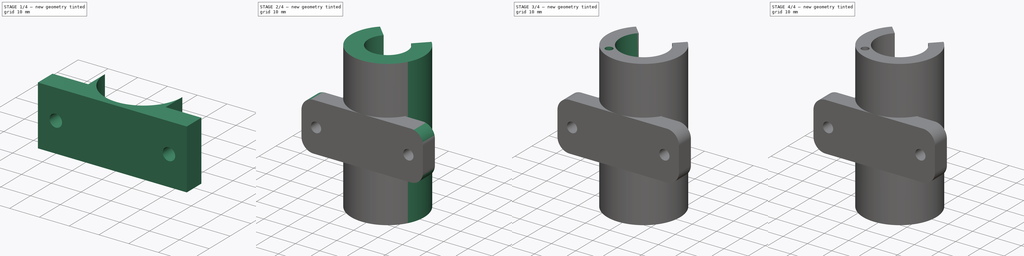
[diagram: build sequence overview — one tinted view per stage of 4, left to right]
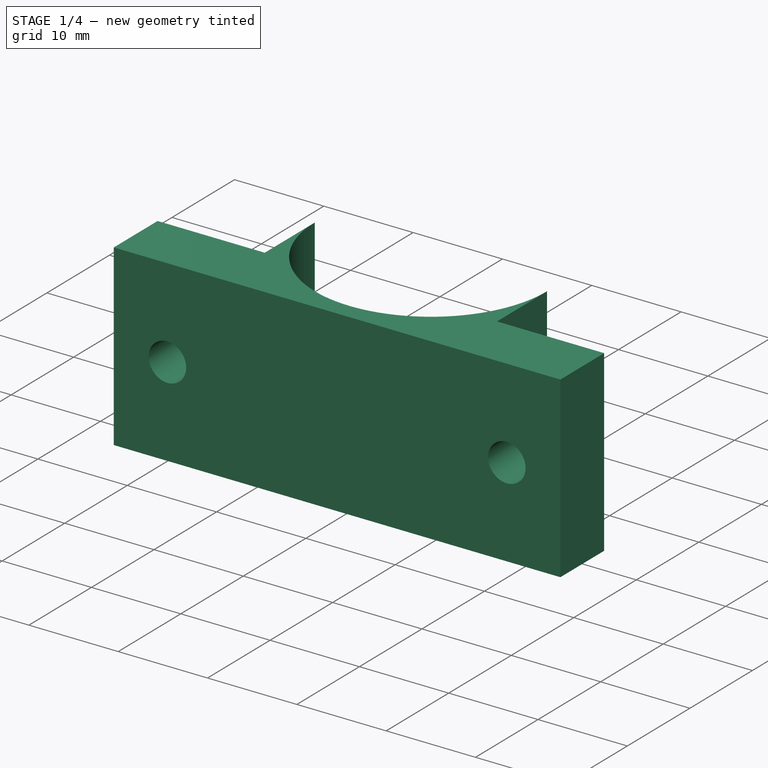
[diagram: stage 1 of 4 — iso view after this stage's code; geometry added in this stage tinted green]
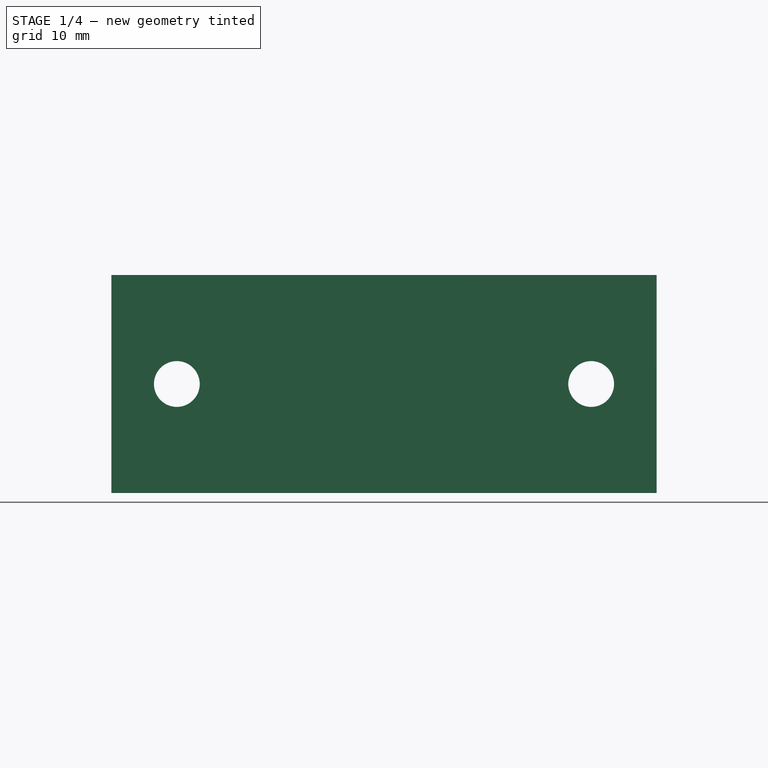
[diagram: stage 1 of 4 — front view after this stage's code; geometry added in this stage tinted green]
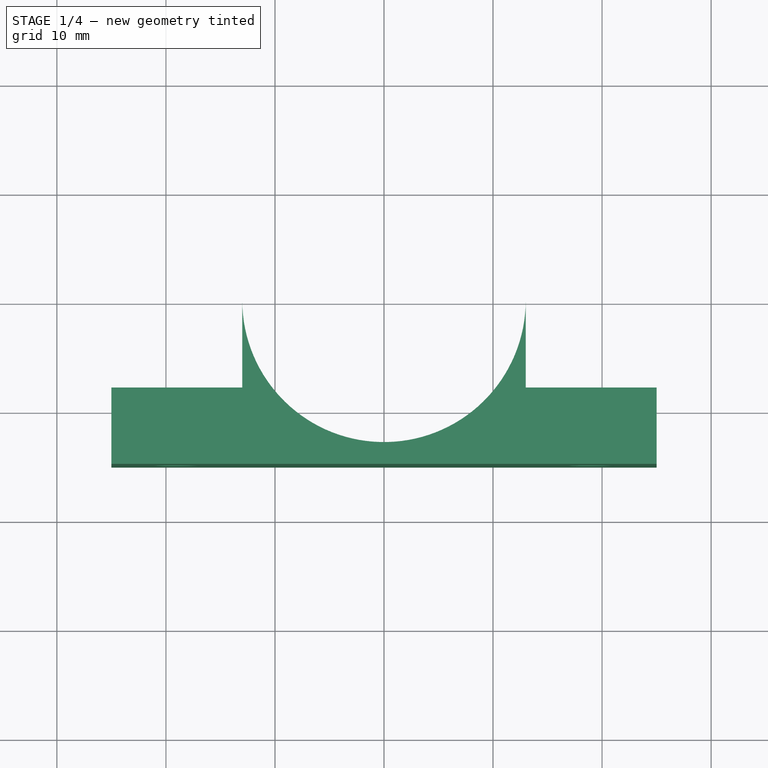
[diagram: stage 1 of 4 — top view after this stage's code; geometry added in this stage tinted green]
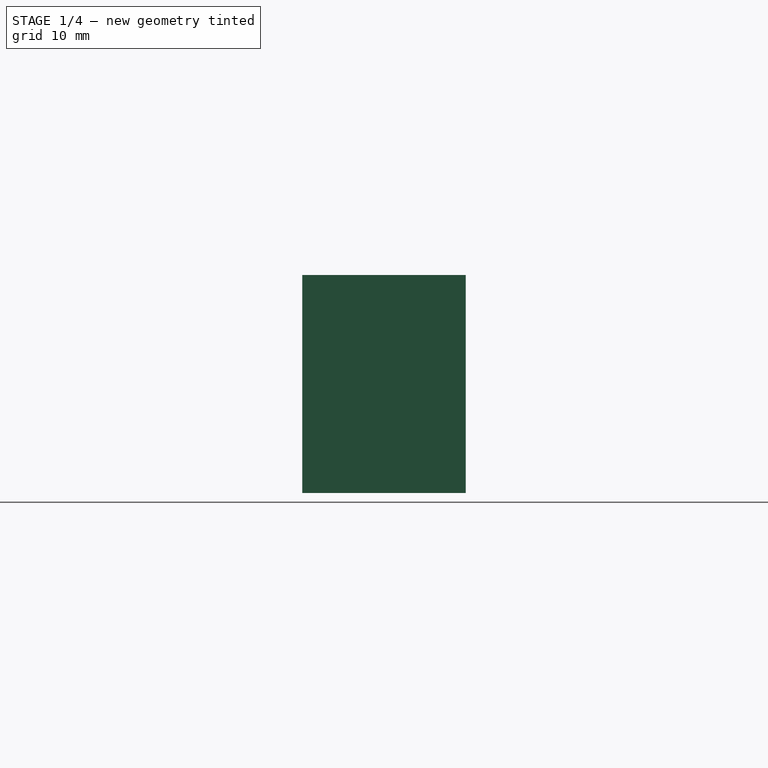
[diagram: stage 1 of 4 — right view after this stage's code; geometry added in this stage tinted green]
FCSTD DOCUMENT  (FreeCAD 0.16R6704 (Git))
Label: z-carriage-lmuu
License: All rights reserved
LicenseURL: http://de.wikipedia.org/wiki/Alle_Rechte_vorbehalten
objects: Sketcher::SketchObject×8, PartDesign::Pocket×6, PartDesign::Pad×2, PartDesign::Fillet×1, Part::MultiFuse×1
note: 26 computed .brp shape members not serialized (recipe doc carries the construction recipe); baked Part::Feature solids carry a one-line shape summary decoded from their .brp

FEATURE [Sketcher::SketchObject] Sketch003
  sketch-geometry (8):
    g0: ArcOfCircle CenterX=0 CenterY=0 CenterZ=0 NormalX=0 NormalY=0 NormalZ=1 Radius=13 StartAngle=3.14159 EndAngle=6.28319
    g1: LineSegment StartX=13 StartY=0 StartZ=0 EndX=13 EndY=-8 EndZ=0
    g2: LineSegment StartX=-13 StartY=0 StartZ=0 EndX=-13 EndY=-8 EndZ=0
    g3: LineSegment StartX=-13 StartY=-8 StartZ=0 EndX=-25 EndY=-8 EndZ=0
    g4: LineSegment StartX=13 StartY=-8 StartZ=0 EndX=25 EndY=-8 EndZ=0
    g5: LineSegment StartX=-25 StartY=-8 StartZ=0 EndX=-25 EndY=-15 EndZ=0
    g6: LineSegment StartX=-25 StartY=-15 StartZ=0 EndX=25 EndY=-15 EndZ=0
    g7: LineSegment StartX=25 StartY=-15 StartZ=0 EndX=25 EndY=-8 EndZ=0
  constraints (23):
    c: Coincident(g0,g-1)
    c: Symmetric(g0,g0,g-2)
    c: Coincident(g1,g0)
    c: Vertical(g1)
    c: Coincident(g2,g0)
    c: Coincident(g3,g2)
    c: Horizontal(g3)
    c: Coincident(g4,g1)
    c: Horizontal(g4)
    c: Coincident(g5,g3)
    c: Vertical(g5)
    c: Coincident(g6,g5)
    c: Horizontal(g6)
    c: Coincident(g7,g6)
    c: Coincident(g7,g4)
    c: Vertical(g7)
    c: Symmetric(g2,g1,g-2)
    c: Equal(g3,g4)
    c: DistanceX(g6,g6) = 50
    c: DistanceY(g7,g7) = 7
    c: DistanceY(g6,g-1) = 15
    c: PointOnObject(g0,g-1)
    c: Radius(g0) = 13
FEATURE [PartDesign::Pad] Pad001
  Length = 20
  Length2 = 100
  Midplane = true
  Sketch = -> Sketch003
  Type = 0
FEATURE [Sketcher::SketchObject] Sketch008
  ExternalGeometry = -> [Pad001]
  Placement = pos=(0,-15,0) rot=(1,0,0;1.5708rad)
  Support = -> Pad001 [Face5]
  sketch-geometry (2):
    g0: Circle CenterX=-19 CenterY=0 CenterZ=0 NormalX=0 NormalY=0 NormalZ=1 Radius=2.1
    g1: Circle CenterX=19 CenterY=0 CenterZ=0 NormalX=0 NormalY=0 NormalZ=1 Radius=2.1
  constraints (6):
    c: PointOnObject(g0,g-1)
    c: PointOnObject(g1,g-1)
    c: Equal(g0,g1)
    c: Radius(g0) = 2.1
    c: DistanceX(g1,g-4) = 6
    c: DistanceX(g-3,g0) = 6
FEATURE [PartDesign::Pocket] Pocket004
  Length = 7
  Sketch = -> Sketch008
  Type = 0
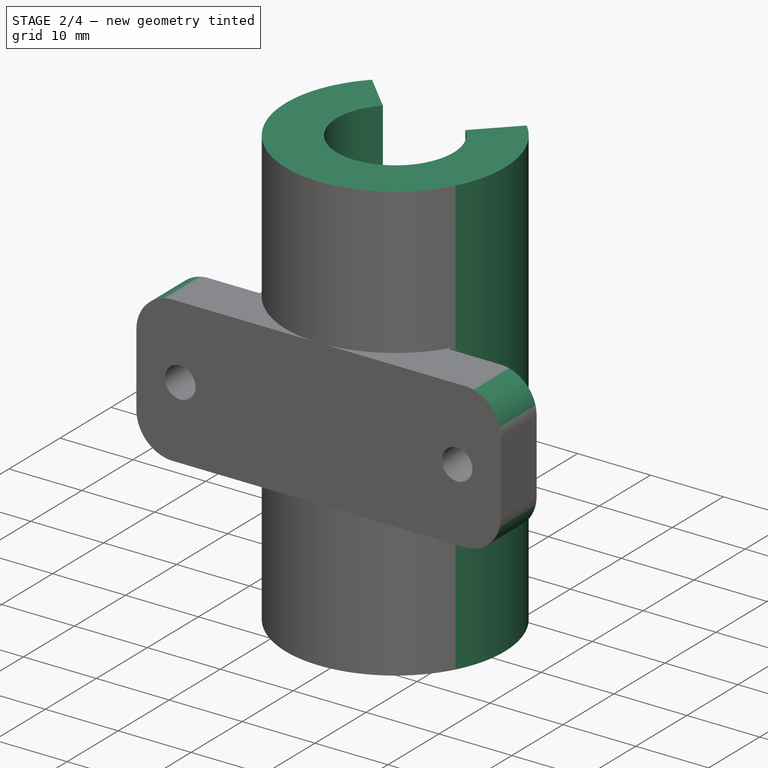
[diagram: stage 2 of 4 — iso view after this stage's code; geometry added in this stage tinted green]
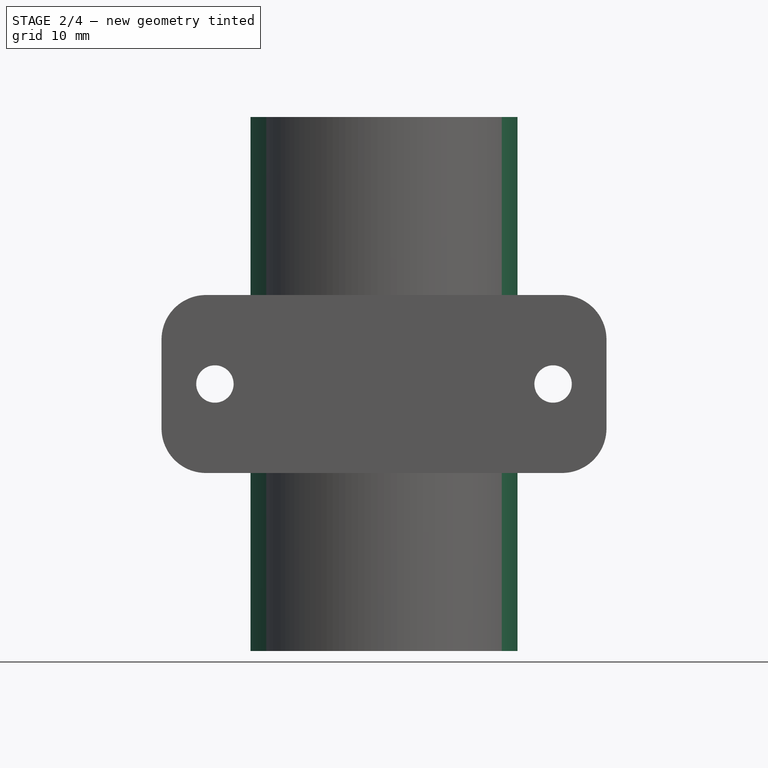
[diagram: stage 2 of 4 — front view after this stage's code; geometry added in this stage tinted green]
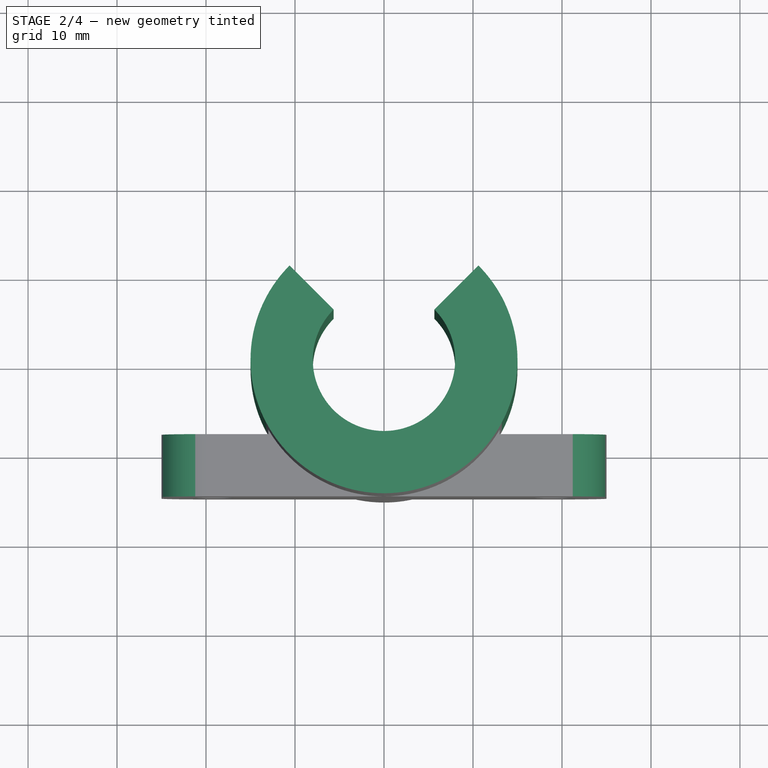
[diagram: stage 2 of 4 — top view after this stage's code; geometry added in this stage tinted green]
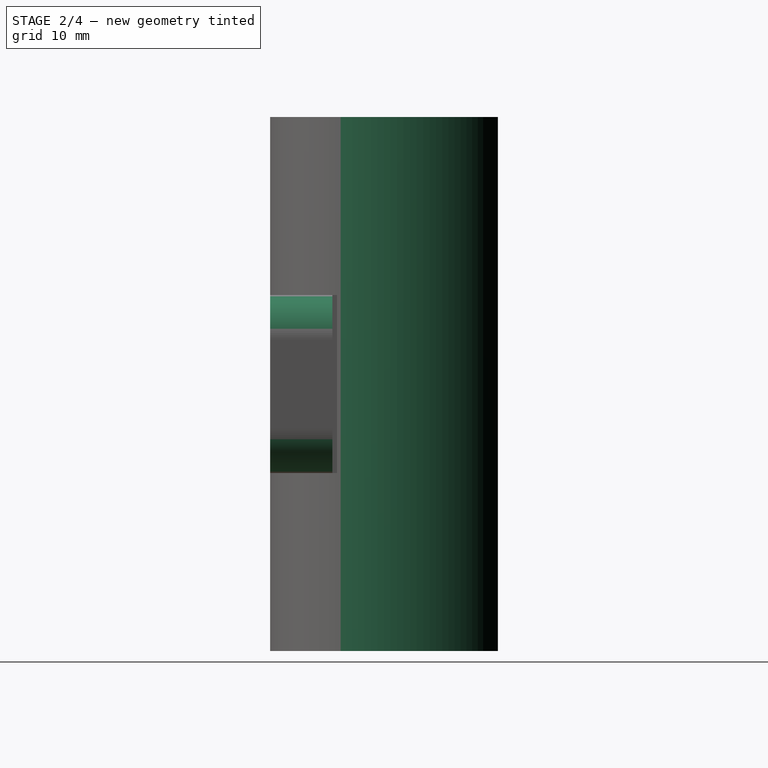
[diagram: stage 2 of 4 — right view after this stage's code; geometry added in this stage tinted green]
FEATURE [Sketcher::SketchObject] Sketch
  sketch-geometry (8):
    g0: ArcOfCircle CenterX=0 CenterY=0 CenterZ=0 NormalX=0 NormalY=0 NormalZ=1 Radius=8 StartAngle=2.35619 EndAngle=7.06858
    g1: LineSegment StartX=-5.65685 StartY=5.65685 StartZ=0 EndX=-10.6066 EndY=10.6066 EndZ=0
    g2: LineSegment StartX=10.6066 StartY=10.6066 StartZ=0 EndX=5.65685 EndY=5.65685 EndZ=0
    g3: LineSegment StartX=-15 StartY=0 StartZ=0 EndX=-15 EndY=-4.33107e-05 EndZ=0
    g4: ArcOfCircle CenterX=0 CenterY=0 CenterZ=0 NormalX=0 NormalY=0 NormalZ=1 Radius=15 StartAngle=4.71239 EndAngle=7.06858
    g5: ArcOfCircle CenterX=0 CenterY=0 CenterZ=0 NormalX=0 NormalY=0 NormalZ=1 Radius=15 StartAngle=2.35619 EndAngle=3.14159
    g6: ArcOfCircle CenterX=0 CenterY=0 CenterZ=0 NormalX=0 NormalY=0 NormalZ=1 Radius=15 StartAngle=3.1416 EndAngle=4.71239
    g7: LineSegment StartX=-4.33101e-05 StartY=-15 StartZ=0 EndX=0 EndY=-15 EndZ=0
  constraints (25):
    c: Coincident(g0,g-1)
    c: Coincident(g1,g0)
    c: Coincident(g2,g0)
    c: Perpendicular(g0,g1)
    c: Perpendicular(g0,g2)
    c: Symmetric(g0,g0,g-2)
    c: Angle(g0) = 4.71239
    c: Radius(g0) = 8
    c: Vertical(g3)
    c: PointOnObject(g4,g-2)
    c: PointOnObject(g3,g-1)
    c: Coincident(g4,g-1)
    c: Coincident(g4,g2)
    c: Coincident(g5,g-1)
    c: Coincident(g5,g3)
    c: Coincident(g5,g1)
    c: Equal(g5,g4)
    c: Radius(g4) = 15
    c: Coincident(g6,g3)
    c: Coincident(g7,g6)
    c: Coincident(g7,g4)
    c: Horizontal(g7)
    c: Tangent(g7,g6)
    c: Tangent(g3,g6)
    c: Radius(g6) = 15
FEATURE [PartDesign::Pad] Pad
  Length = 60
  Length2 = 100
  Midplane = true
  Sketch = -> Sketch
  Type = 0
FEATURE [Sketcher::SketchObject] Sketch009
  ExternalGeometry = -> [Pocket004]
  Placement = pos=(0,-8,0) rot=(0,0.707107,0.707107;3.14159rad)
  Support = -> Pocket004 [Face6]
  sketch-geometry (2):
    g0: Circle CenterX=-19 CenterY=0 CenterZ=0 NormalX=0 NormalY=0 NormalZ=1 Radius=3.6
    g1: Circle CenterX=19 CenterY=0 CenterZ=0 NormalX=0 NormalY=0 NormalZ=1 Radius=3.6
  constraints (4):
    c: Coincident(g0,g-4)
    c: Coincident(g1,g-3)
    c: Equal(g0,g1)
    c: Radius(g1) = 3.6
FEATURE [PartDesign::Pocket] Pocket005
  Length = 2
  Sketch = -> Sketch009
  Type = 0
FEATURE [PartDesign::Fillet] Fillet
  Base = -> Pocket005 [Edge17,Edge12,Edge19,Edge14]
  Radius = 5
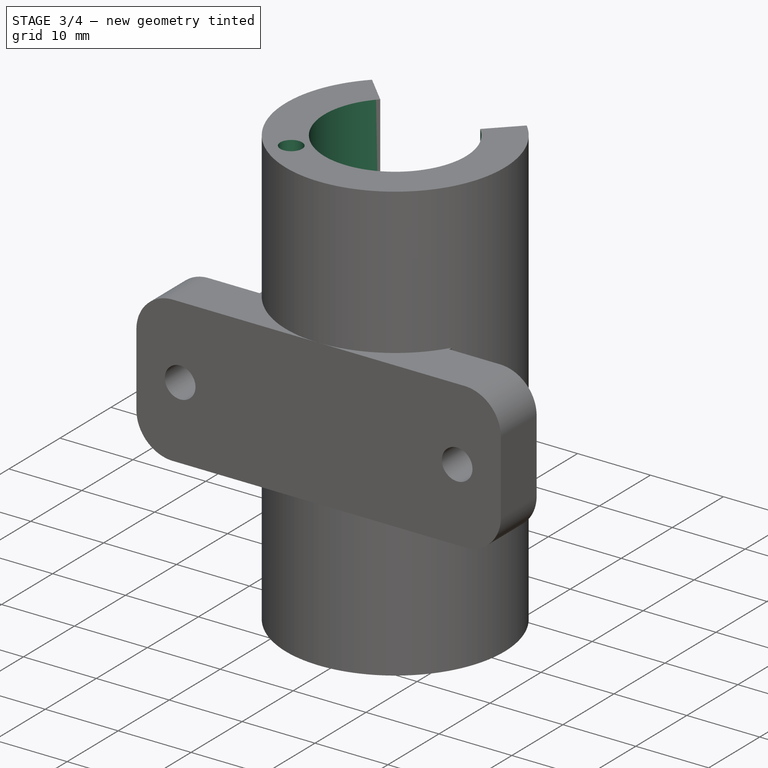
[diagram: stage 3 of 4 — iso view after this stage's code; geometry added in this stage tinted green]
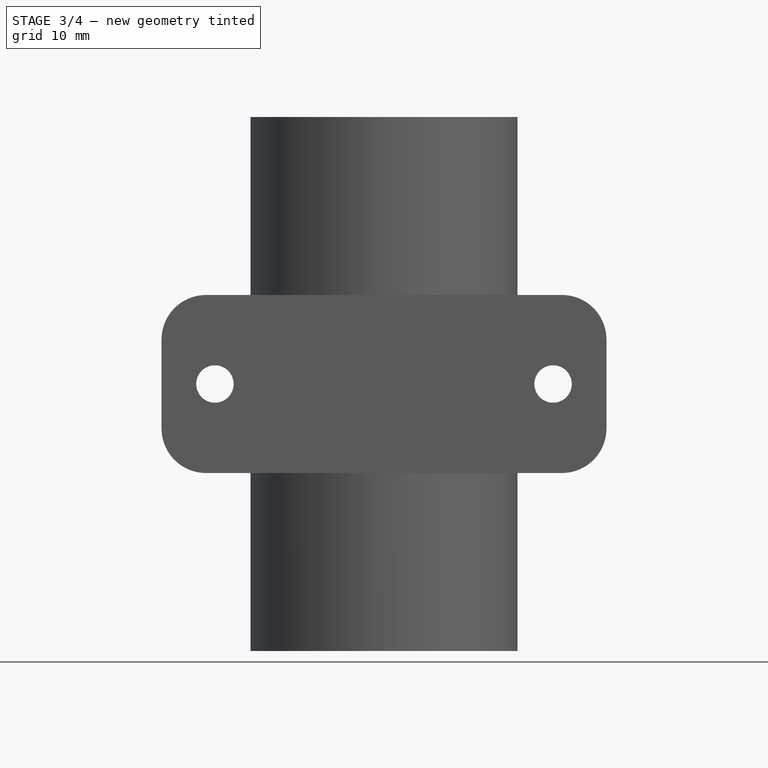
[diagram: stage 3 of 4 — front view after this stage's code; geometry added in this stage tinted green]
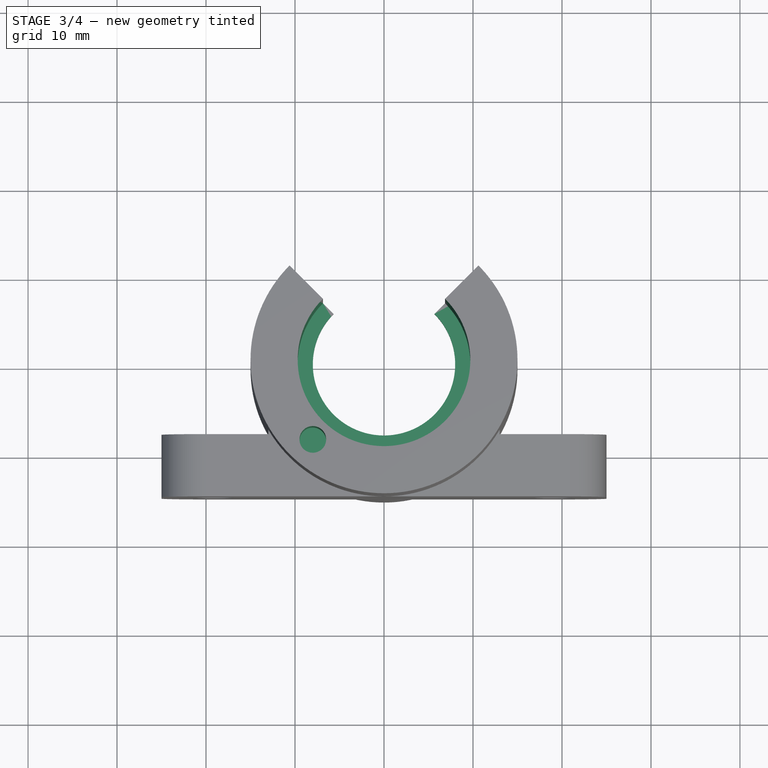
[diagram: stage 3 of 4 — top view after this stage's code; geometry added in this stage tinted green]
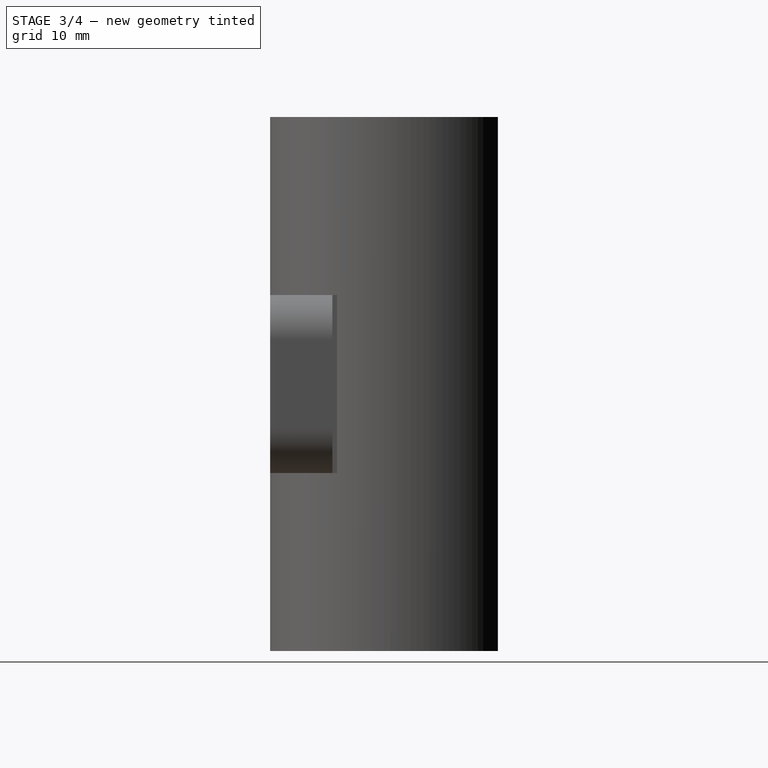
[diagram: stage 3 of 4 — right view after this stage's code; geometry added in this stage tinted green]
FEATURE [Sketcher::SketchObject] Sketch004
  Placement = pos=(0,0,30) rot=(0,0,1;0rad)
  Support = -> Pad [Face10]
  sketch-geometry (1):
    g0: Circle CenterX=0 CenterY=0 CenterZ=0 NormalX=0 NormalY=0 NormalZ=1 Radius=9.7
  constraints (2):
    c: Coincident(g0,g-1)
    c: Radius(g0) = 9.7
FEATURE [PartDesign::Pocket] Pocket
  Length = 29
  Sketch = -> Sketch004
  Type = 0
FEATURE [Sketcher::SketchObject] Sketch005
  Placement = pos=(0,0,-30) rot=(1,0,0;3.14159rad)
  Support = -> Pocket [Face4]
  sketch-geometry (1):
    g0: Circle CenterX=0 CenterY=0 CenterZ=0 NormalX=0 NormalY=0 NormalZ=1 Radius=9.7
  constraints (2):
    c: Radius(g0) = 9.7
    c: Coincident(g0,g-1)
FEATURE [PartDesign::Pocket] Pocket001
  Length = 29
  Sketch = -> Sketch005
  Type = 0
FEATURE [Sketcher::SketchObject] Sketch006
  ExternalGeometry = -> [Pocket001]
  Placement = pos=(0,0,30) rot=(0,0,1;0rad)
  Support = -> Pocket001 [Face5]
  sketch-geometry (1):
    g0: Circle CenterX=-8 CenterY=-8.94427 CenterZ=0 NormalX=0 NormalY=0 NormalZ=1 Radius=1.5
  constraints (3):
    c: Distance(g-1,g0) = 12
    c: Radius(g0) = 1.5
    c: DistanceX(g0,g-1) = 8
FEATURE [PartDesign::Pocket] Pocket002
  Length = 10
  Sketch = -> Sketch006
  Type = 0
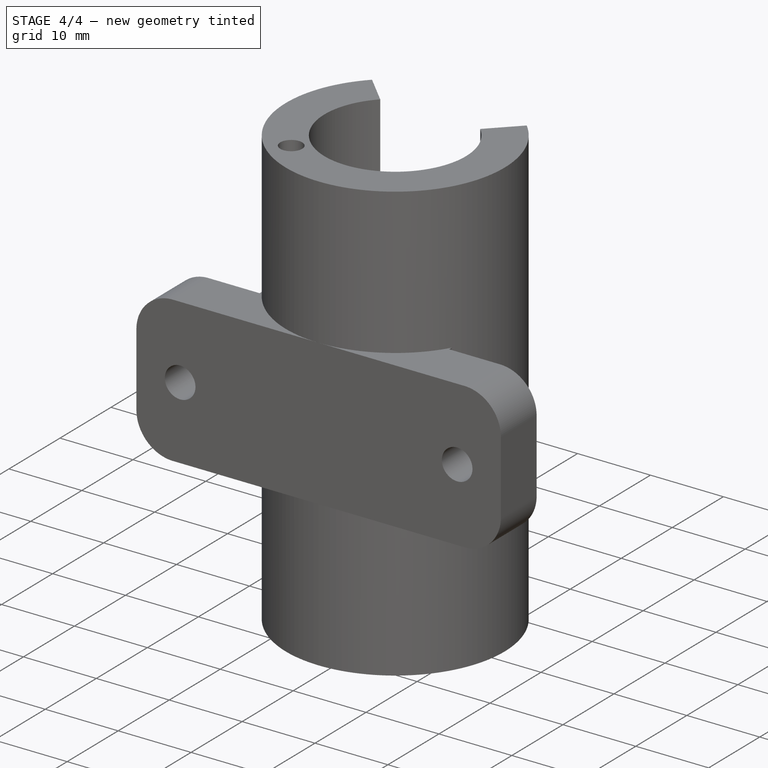
[diagram: stage 4 of 4 — iso view after this stage's code; geometry added in this stage tinted green]
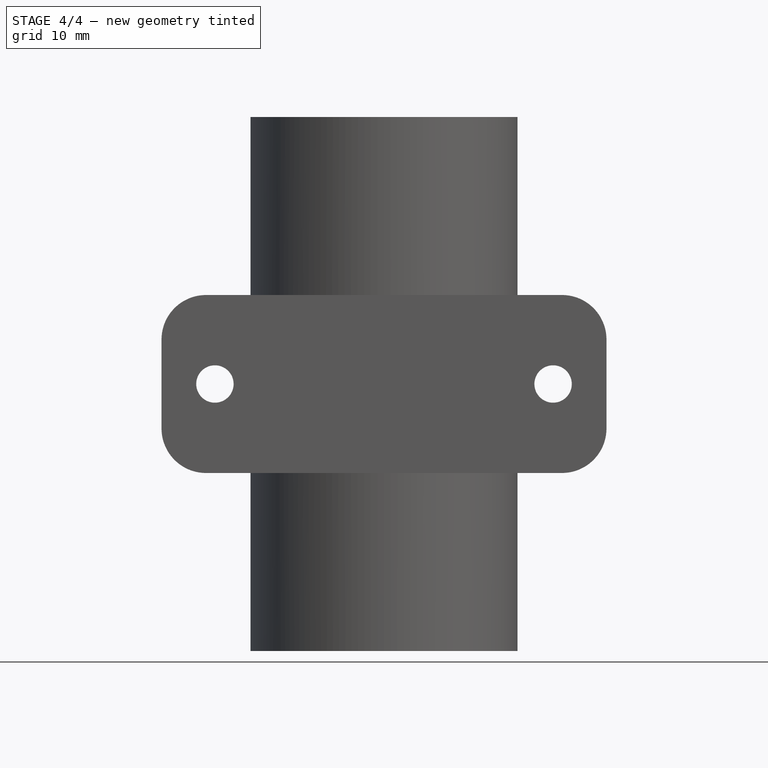
[diagram: stage 4 of 4 — front view after this stage's code; geometry added in this stage tinted green]
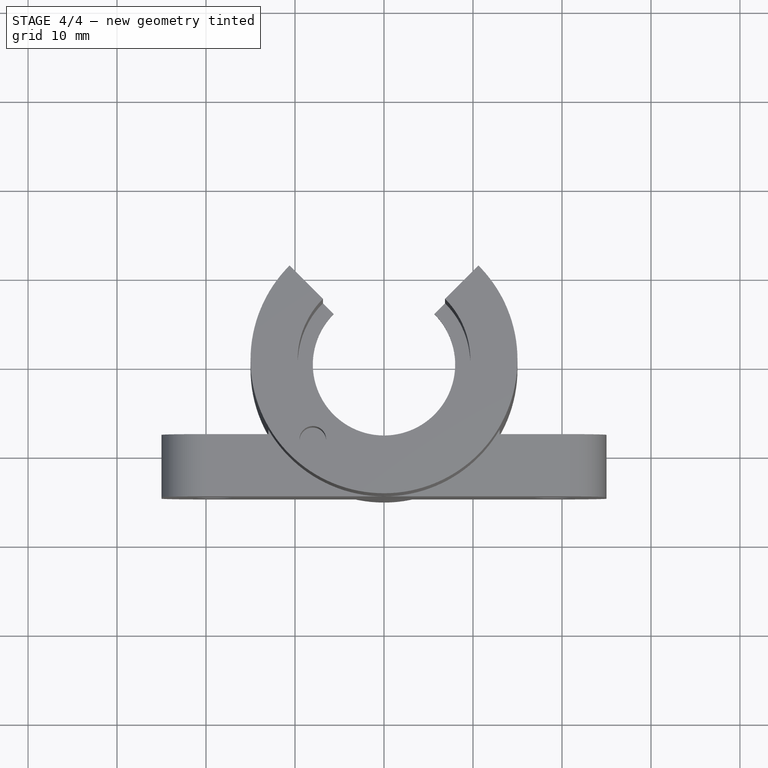
[diagram: stage 4 of 4 — top view after this stage's code; geometry added in this stage tinted green]
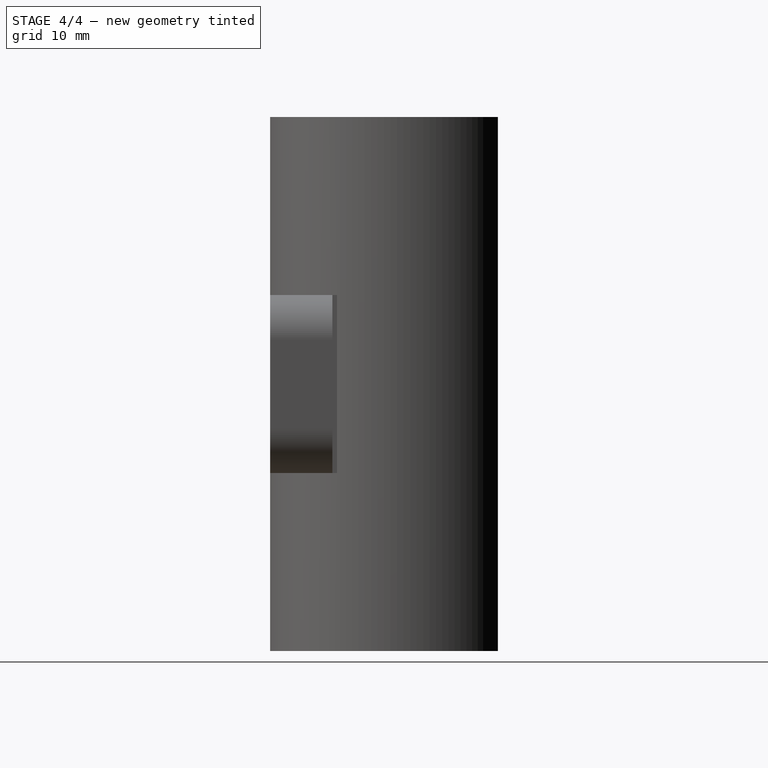
[diagram: stage 4 of 4 — right view after this stage's code; geometry added in this stage tinted green]
FEATURE [Sketcher::SketchObject] Sketch007
  Placement = pos=(0,0,-30) rot=(1,0,0;3.14159rad)
  Support = -> Pocket002 [Face4]
  sketch-geometry (1):
    g0: Circle CenterX=-8 CenterY=8.94427 CenterZ=0 NormalX=0 NormalY=0 NormalZ=1 Radius=1.5
  constraints (3):
    c: Distance(g-1,g0) = 12
    c: DistanceX(g0,g-1) = 8
    c: Radius(g0) = 1.5
FEATURE [PartDesign::Pocket] Pocket003
  Length = 10
  Sketch = -> Sketch007
  Type = 0
FEATURE [Part::MultiFuse] Fusion
  Shapes = -> [Fillet,Pocket003]
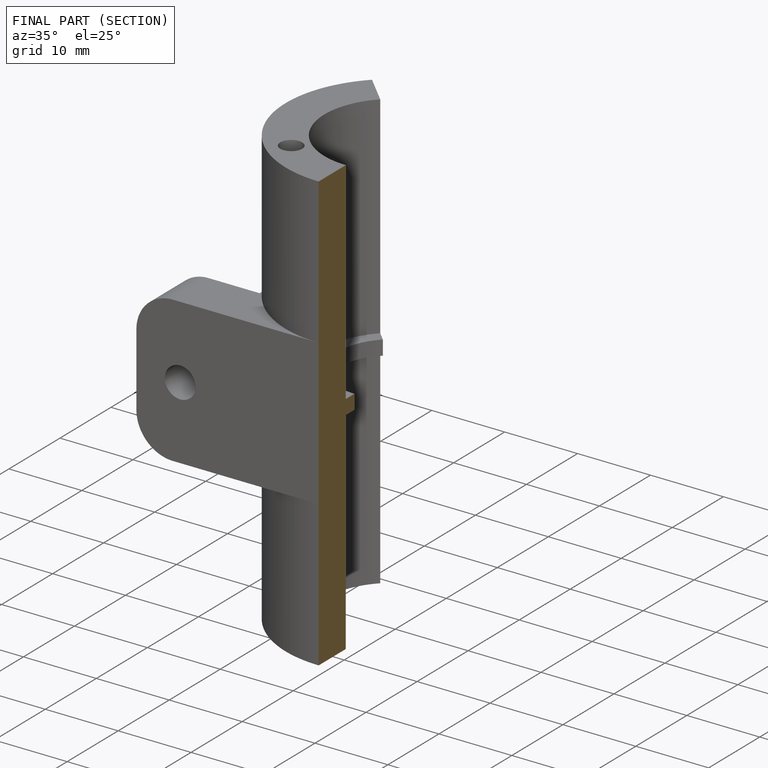
[diagram: finished part — half-section view (interior)]
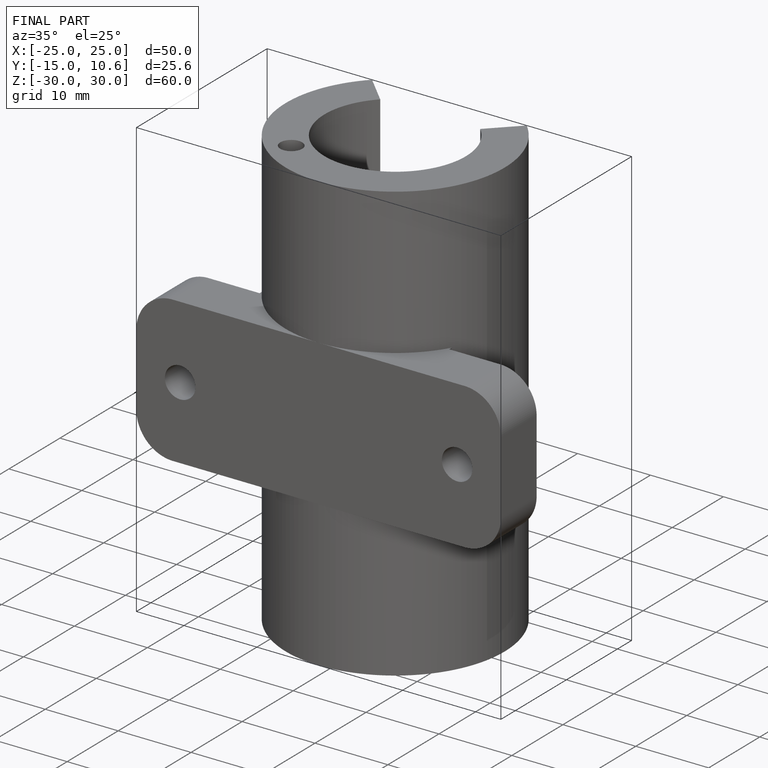
[diagram: finished part — iso view with bounding-box wireframe]
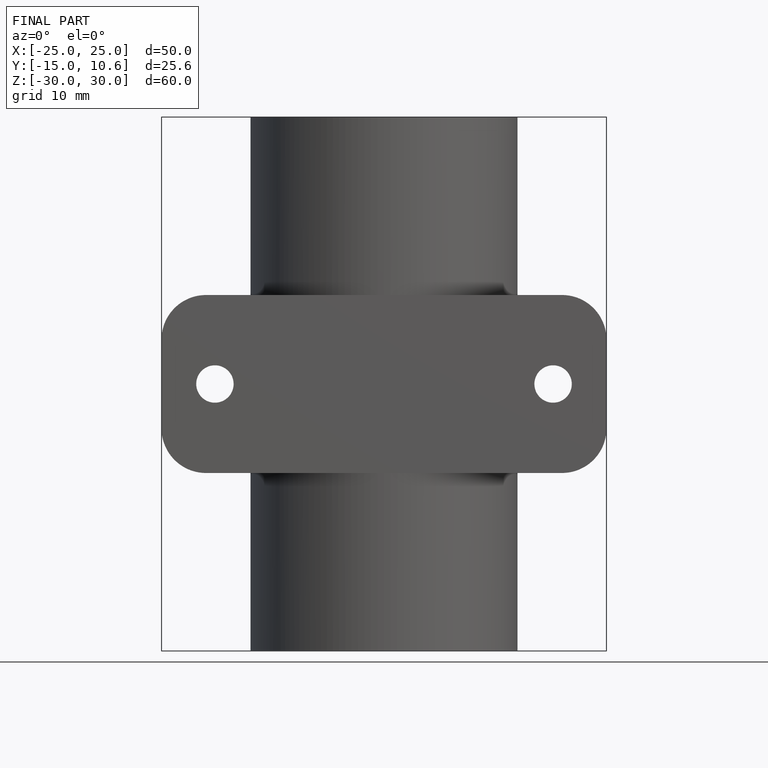
[diagram: finished part — front view with bounding-box wireframe]
